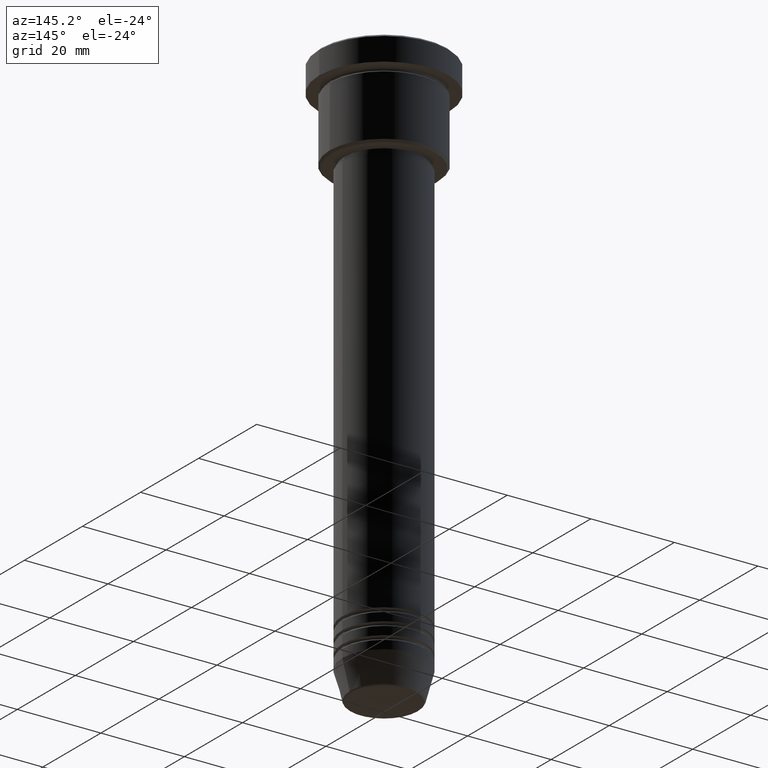
[diagram: clean part render]
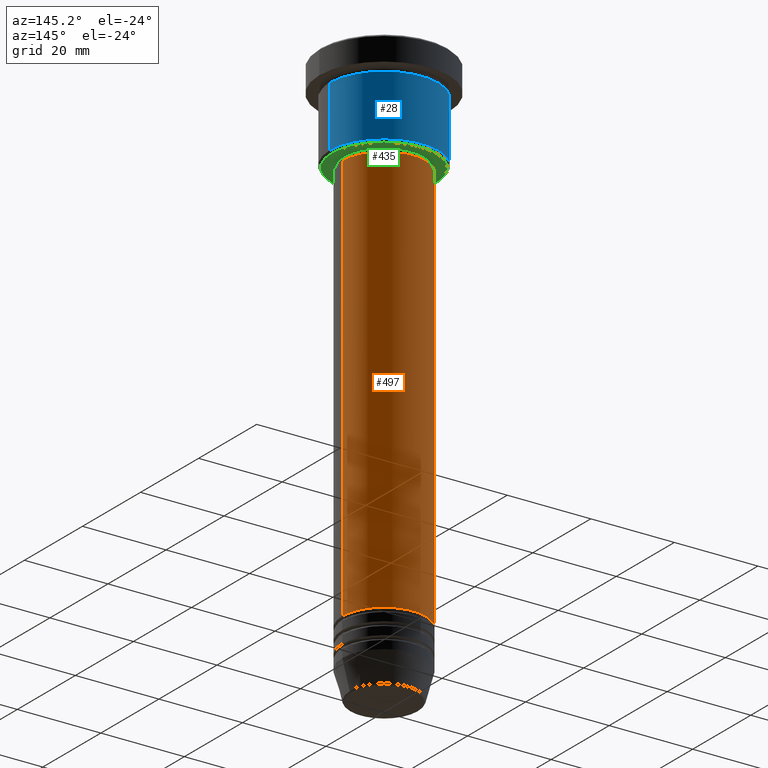
[diagram: same view with three faces highlighted in distinct colors, each labeled with its STEP entity id]
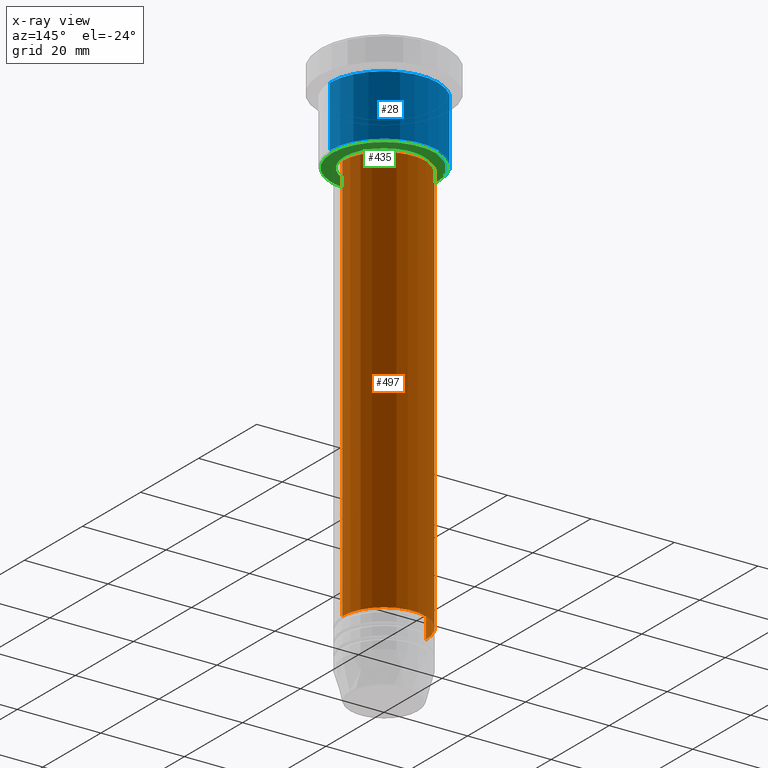
[diagram: x-ray of the same camera — body ghosted, the three highlighted faces saturated]
A machine part, auxiliary view with three faces highlighted in distinct colors.
The next image is the same camera in x-ray (body ghosted, the three faces saturated) — at least one of them is partly hidden behind the body in this view.
Their STEP definitions:

[orange] entity #497 — the highlighted cylindrical surface (partial cylindrical patch) has radius 10 mm, axis along (-0, -0, 1).
#10 = AXIS2_PLACEMENT_3D ( 'NONE', #673, #311, #401 ) ;
#14 = EDGE_CURVE ( 'NONE', #610, #878, #505, .T. ) ;
#85 = ORIENTED_EDGE ( 'NONE', *, *, #270, .T. ) ;
#90 = VECTOR ( 'NONE', #540, 1000.000000000000000 ) ;
#124 = CARTESIAN_POINT ( 'NONE',  ( -10.00000000000000000, 1.224646799147353256E-15, -120.9999999999999716 ) ) ;
#125 = DIRECTION ( 'NONE',  ( -0.000000000000000000, -0.000000000000000000, 1.000000000000000000 ) ) ;
#222 = CIRCLE ( 'NONE', #879, 10.00000000000000000 ) ;
#267 = DIRECTION ( 'NONE',  ( -0.000000000000000000, -0.000000000000000000, 1.000000000000000000 ) ) ;
#270 = EDGE_CURVE ( 'NONE', #878, #1010, #357, .T. ) ;
#292 = CARTESIAN_POINT ( 'NONE',  ( 0.000000000000000000, 0.000000000000000000, -23.00000000000000000 ) ) ;
#311 = DIRECTION ( 'NONE',  ( -0.000000000000000000, -0.000000000000000000, 1.000000000000000000 ) ) ;
#357 = LINE ( 'NONE', #526, #90 ) ;
#363 = ORIENTED_EDGE ( 'NONE', *, *, #539, .F. ) ;
#401 = DIRECTION ( 'NONE',  ( 1.000000000000000000, 0.000000000000000000, 0.000000000000000000 ) ) ;
#495 = CARTESIAN_POINT ( 'NONE',  ( 0.000000000000000000, 0.000000000000000000, 0.000000000000000000 ) ) ;
#497 = ADVANCED_FACE ( 'NONE', ( #660 ), #1110, .T. ) ;
#505 = CIRCLE ( 'NONE', #10, 10.00000000000000000 ) ;
#526 = CARTESIAN_POINT ( 'NONE',  ( -10.00000000000000000, 1.224646799147353256E-15, 0.000000000000000000 ) ) ;
#539 = EDGE_CURVE ( 'NONE', #876, #1010, #222, .T. ) ;
#540 = DIRECTION ( 'NONE',  ( -0.000000000000000000, -0.000000000000000000, 1.000000000000000000 ) ) ;
#610 = VERTEX_POINT ( 'NONE', #755 ) ;
#660 = FACE_OUTER_BOUND ( 'NONE', #1182, .T. ) ;
#673 = CARTESIAN_POINT ( 'NONE',  ( 0.000000000000000000, 0.000000000000000000, -120.9999999999999716 ) ) ;
#730 = DIRECTION ( 'NONE',  ( -0.000000000000000000, -0.000000000000000000, 1.000000000000000000 ) ) ;
#755 = CARTESIAN_POINT ( 'NONE',  ( 10.00000000000000000, 0.000000000000000000, -120.9999999999999716 ) ) ;
#776 = EDGE_CURVE ( 'NONE', #610, #876, #1160, .T. ) ;
#833 = ORIENTED_EDGE ( 'NONE', *, *, #14, .T. ) ;
#838 = AXIS2_PLACEMENT_3D ( 'NONE', #495, #730, #1025 ) ;
#874 = DIRECTION ( 'NONE',  ( 1.000000000000000000, 0.000000000000000000, 0.000000000000000000 ) ) ;
#876 = VERTEX_POINT ( 'NONE', #927 ) ;
#878 = VERTEX_POINT ( 'NONE', #124 ) ;
#879 = AXIS2_PLACEMENT_3D ( 'NONE', #292, #125, #874 ) ;
#891 = ORIENTED_EDGE ( 'NONE', *, *, #776, .F. ) ;
#927 = CARTESIAN_POINT ( 'NONE',  ( 10.00000000000000000, 0.000000000000000000, -23.00000000000000000 ) ) ;
#1010 = VERTEX_POINT ( 'NONE', #1031 ) ;
#1025 = DIRECTION ( 'NONE',  ( 1.000000000000000000, 0.000000000000000000, 0.000000000000000000 ) ) ;
#1031 = CARTESIAN_POINT ( 'NONE',  ( -10.00000000000000000, 1.224646799147353256E-15, -23.00000000000000000 ) ) ;
#1077 = CARTESIAN_POINT ( 'NONE',  ( 10.00000000000000000, 0.000000000000000000, 0.000000000000000000 ) ) ;
#1110 = CYLINDRICAL_SURFACE ( 'NONE', #838, 10.00000000000000000 ) ;
#1135 = VECTOR ( 'NONE', #267, 1000.000000000000000 ) ;
#1160 = LINE ( 'NONE', #1077, #1135 ) ;
#1182 = EDGE_LOOP ( 'NONE', ( #833, #85, #363, #891 ) ) ;

[blue] entity #28 — the highlighted cylindrical surface (partial cylindrical patch) has radius 13 mm, axis along (-0, -0, 1).
#3 = CARTESIAN_POINT ( 'NONE',  ( -13.00000000000000000, 1.592040838891559095E-15, 0.000000000000000000 ) ) ;
#28 = ADVANCED_FACE ( 'NONE', ( #925 ), #380, .T. ) ;
#56 = EDGE_CURVE ( 'NONE', #1169, #767, #825, .T. ) ;
#67 = EDGE_CURVE ( 'NONE', #767, #560, #185, .T. ) ;
#128 = ORIENTED_EDGE ( 'NONE', *, *, #67, .F. ) ;
#185 = CIRCLE ( 'NONE', #937, 13.00000000000000000 ) ;
#212 = CARTESIAN_POINT ( 'NONE',  ( 0.000000000000000000, 0.000000000000000000, -6.999999999999995559 ) ) ;
#260 = LINE ( 'NONE', #3, #729 ) ;
#296 = ORIENTED_EDGE ( 'NONE', *, *, #56, .F. ) ;
#299 = CARTESIAN_POINT ( 'NONE',  ( 0.000000000000000000, 0.000000000000000000, 0.000000000000000000 ) ) ;
#317 = VECTOR ( 'NONE', #741, 1000.000000000000000 ) ;
#318 = CIRCLE ( 'NONE', #602, 13.00000000000000000 ) ;
#378 = CARTESIAN_POINT ( 'NONE',  ( -13.00000000000000000, 1.592040838891559095E-15, -21.49999999999996092 ) ) ;
#380 = CYLINDRICAL_SURFACE ( 'NONE', #692, 13.00000000000000000 ) ;
#408 = EDGE_LOOP ( 'NONE', ( #791, #738, #128, #296 ) ) ;
#422 = EDGE_CURVE ( 'NONE', #1169, #886, #318, .T. ) ;
#558 = DIRECTION ( 'NONE',  ( -0.000000000000000000, -0.000000000000000000, 1.000000000000000000 ) ) ;
#560 = VERTEX_POINT ( 'NONE', #607 ) ;
#578 = DIRECTION ( 'NONE',  ( -0.000000000000000000, -0.000000000000000000, 1.000000000000000000 ) ) ;
#582 = DIRECTION ( 'NONE',  ( -0.000000000000000000, -0.000000000000000000, 1.000000000000000000 ) ) ;
#602 = AXIS2_PLACEMENT_3D ( 'NONE', #740, #558, #651 ) ;
#607 = CARTESIAN_POINT ( 'NONE',  ( -13.00000000000000000, 1.592040838891559095E-15, -6.999999999999995559 ) ) ;
#651 = DIRECTION ( 'NONE',  ( -1.000000000000000000, 0.000000000000000000, 0.000000000000000000 ) ) ;
#669 = DIRECTION ( 'NONE',  ( 1.000000000000000000, 0.000000000000000000, 0.000000000000000000 ) ) ;
#692 = AXIS2_PLACEMENT_3D ( 'NONE', #299, #578, #669 ) ;
#710 = CARTESIAN_POINT ( 'NONE',  ( 13.00000000000000000, 0.000000000000000000, -21.49999999999996092 ) ) ;
#729 = VECTOR ( 'NONE', #993, 1000.000000000000000 ) ;
#738 = ORIENTED_EDGE ( 'NONE', *, *, #799, .T. ) ;
#740 = CARTESIAN_POINT ( 'NONE',  ( 0.000000000000000000, 0.000000000000000000, -21.49999999999996092 ) ) ;
#741 = DIRECTION ( 'NONE',  ( -0.000000000000000000, -0.000000000000000000, 1.000000000000000000 ) ) ;
#753 = CARTESIAN_POINT ( 'NONE',  ( 13.00000000000000000, 0.000000000000000000, 0.000000000000000000 ) ) ;
#767 = VERTEX_POINT ( 'NONE', #796 ) ;
#791 = ORIENTED_EDGE ( 'NONE', *, *, #422, .T. ) ;
#796 = CARTESIAN_POINT ( 'NONE',  ( 13.00000000000000000, 0.000000000000000000, -6.999999999999995559 ) ) ;
#799 = EDGE_CURVE ( 'NONE', #886, #560, #260, .T. ) ;
#825 = LINE ( 'NONE', #753, #317 ) ;
#839 = DIRECTION ( 'NONE',  ( 1.000000000000000000, 0.000000000000000000, 0.000000000000000000 ) ) ;
#886 = VERTEX_POINT ( 'NONE', #378 ) ;
#925 = FACE_OUTER_BOUND ( 'NONE', #408, .T. ) ;
#937 = AXIS2_PLACEMENT_3D ( 'NONE', #212, #582, #839 ) ;
#993 = DIRECTION ( 'NONE',  ( -0.000000000000000000, -0.000000000000000000, 1.000000000000000000 ) ) ;
#1169 = VERTEX_POINT ( 'NONE', #710 ) ;

[green] entity #435 — the highlighted planar face has unit normal (0, 0, -1).
#5 = VERTEX_POINT ( 'NONE', #307 ) ;
#15 = CARTESIAN_POINT ( 'NONE',  ( -12.49999999999995559, 1.561424668912872745E-15, -21.99999999999999645 ) ) ;
#45 = EDGE_LOOP ( 'NONE', ( #364, #652 ) ) ;
#92 = AXIS2_PLACEMENT_3D ( 'NONE', #1012, #388, #827 ) ;
#105 = EDGE_CURVE ( 'NONE', #554, #5, #489, .T. ) ;
#115 = DIRECTION ( 'NONE',  ( 0.000000000000000000, 0.000000000000000000, -1.000000000000000000 ) ) ;
#135 = DIRECTION ( 'NONE',  ( 1.000000000000000000, 0.000000000000000000, 0.000000000000000000 ) ) ;
#138 = EDGE_CURVE ( 'NONE', #841, #504, #1153, .T. ) ;
#173 = DIRECTION ( 'NONE',  ( 1.000000000000000000, 0.000000000000000000, 0.000000000000000000 ) ) ;
#220 = CARTESIAN_POINT ( 'NONE',  ( 0.000000000000000000, 0.000000000000000000, -21.99999999999999645 ) ) ;
#281 = CIRCLE ( 'NONE', #302, 12.49999999999995559 ) ;
#302 = AXIS2_PLACEMENT_3D ( 'NONE', #310, #115, #930 ) ;
#307 = CARTESIAN_POINT ( 'NONE',  ( -9.500000000000000000, 1.163414459189985485E-15, -21.99999999999999645 ) ) ;
#310 = CARTESIAN_POINT ( 'NONE',  ( 0.000000000000000000, 0.000000000000000000, -21.99999999999999645 ) ) ;
#328 = EDGE_LOOP ( 'NONE', ( #629, #1156 ) ) ;
#364 = ORIENTED_EDGE ( 'NONE', *, *, #105, .T. ) ;
#388 = DIRECTION ( 'NONE',  ( 0.000000000000000000, 0.000000000000000000, -1.000000000000000000 ) ) ;
#409 = AXIS2_PLACEMENT_3D ( 'NONE', #589, #948, #972 ) ;
#418 = EDGE_CURVE ( 'NONE', #504, #841, #281, .T. ) ;
#435 = ADVANCED_FACE ( 'NONE', ( #474, #563 ), #672, .T. ) ;
#474 = FACE_OUTER_BOUND ( 'NONE', #328, .T. ) ;
#489 = CIRCLE ( 'NONE', #1117, 9.500000000000000000 ) ;
#504 = VERTEX_POINT ( 'NONE', #15 ) ;
#554 = VERTEX_POINT ( 'NONE', #1133 ) ;
#563 = FACE_BOUND ( 'NONE', #45, .T. ) ;
#589 = CARTESIAN_POINT ( 'NONE',  ( 0.000000000000000000, 0.000000000000000000, -21.99999999999999645 ) ) ;
#618 = CARTESIAN_POINT ( 'NONE',  ( 12.49999999999995559, 0.000000000000000000, -21.99999999999999645 ) ) ;
#629 = ORIENTED_EDGE ( 'NONE', *, *, #138, .T. ) ;
#652 = ORIENTED_EDGE ( 'NONE', *, *, #695, .T. ) ;
#672 = PLANE ( 'NONE',  #92 ) ;
#695 = EDGE_CURVE ( 'NONE', #5, #554, #940, .T. ) ;
#792 = DIRECTION ( 'NONE',  ( -0.000000000000000000, -0.000000000000000000, 1.000000000000000000 ) ) ;
#827 = DIRECTION ( 'NONE',  ( -1.000000000000000000, 0.000000000000000000, -0.000000000000000000 ) ) ;
#841 = VERTEX_POINT ( 'NONE', #618 ) ;
#880 = AXIS2_PLACEMENT_3D ( 'NONE', #1151, #792, #173 ) ;
#930 = DIRECTION ( 'NONE',  ( -1.000000000000000000, 0.000000000000000000, 0.000000000000000000 ) ) ;
#940 = CIRCLE ( 'NONE', #880, 9.500000000000000000 ) ;
#948 = DIRECTION ( 'NONE',  ( 0.000000000000000000, 0.000000000000000000, -1.000000000000000000 ) ) ;
#972 = DIRECTION ( 'NONE',  ( -1.000000000000000000, 0.000000000000000000, 0.000000000000000000 ) ) ;
#1012 = CARTESIAN_POINT ( 'NONE',  ( 0.000000000000000000, 13.00000000000000000, -21.99999999999999645 ) ) ;
#1037 = DIRECTION ( 'NONE',  ( -0.000000000000000000, -0.000000000000000000, 1.000000000000000000 ) ) ;
#1117 = AXIS2_PLACEMENT_3D ( 'NONE', #220, #1037, #135 ) ;
#1133 = CARTESIAN_POINT ( 'NONE',  ( 9.500000000000000000, 0.000000000000000000, -21.99999999999999645 ) ) ;
#1151 = CARTESIAN_POINT ( 'NONE',  ( 0.000000000000000000, 0.000000000000000000, -21.99999999999999645 ) ) ;
#1153 = CIRCLE ( 'NONE', #409, 12.49999999999995559 ) ;
#1156 = ORIENTED_EDGE ( 'NONE', *, *, #418, .T. ) ;